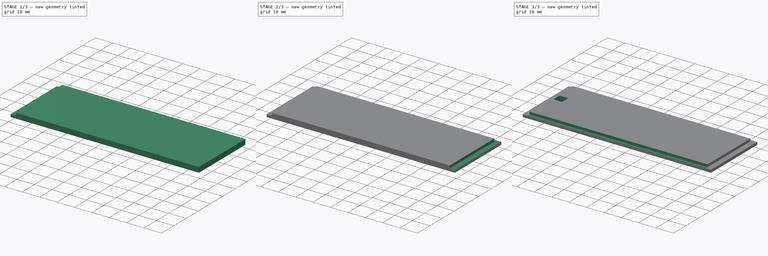
[diagram: build sequence overview — one tinted view per stage of 3, left to right]
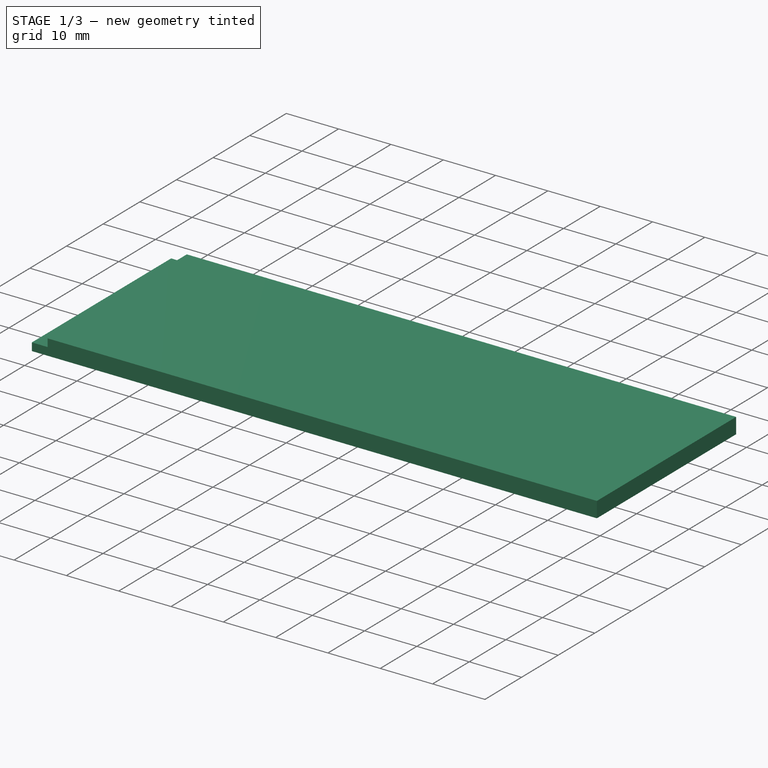
[diagram: stage 1 of 3 — iso view after this stage's code; geometry added in this stage tinted green]
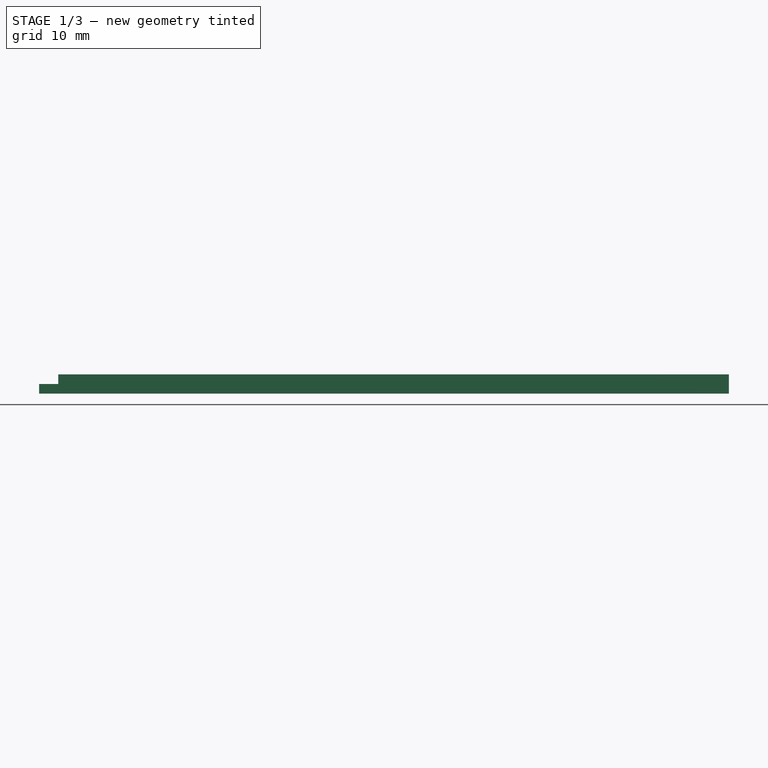
[diagram: stage 1 of 3 — front view after this stage's code; geometry added in this stage tinted green]
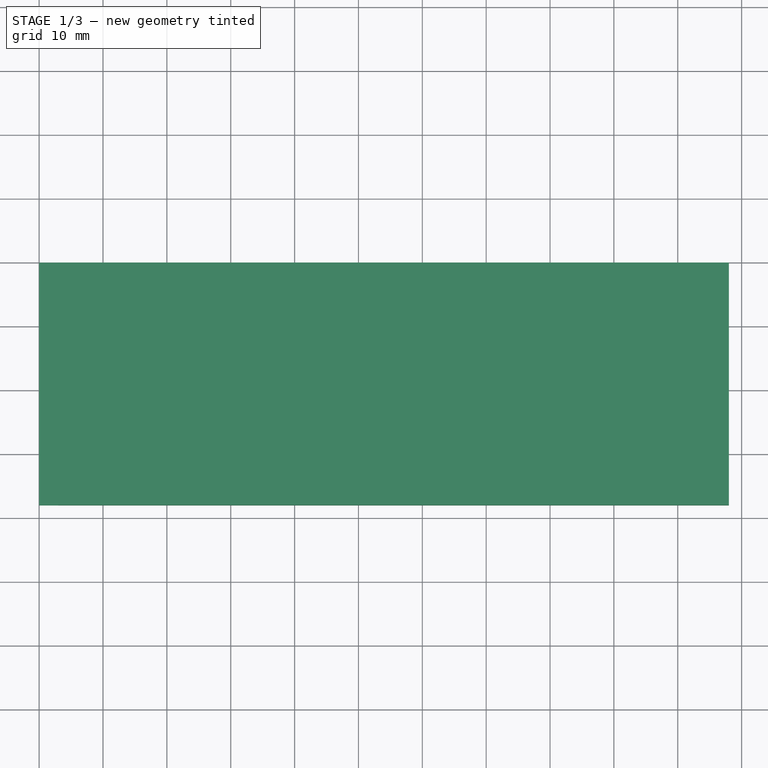
[diagram: stage 1 of 3 — top view after this stage's code; geometry added in this stage tinted green]
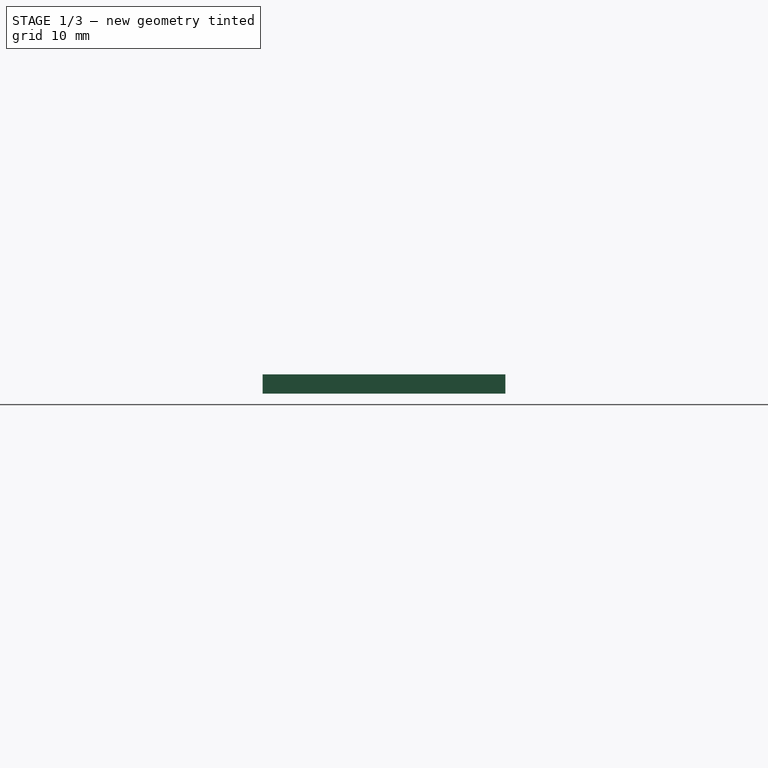
[diagram: stage 1 of 3 — right view after this stage's code; geometry added in this stage tinted green]
FCSTD DOCUMENT  (FreeCAD 0.21R33771 (Git))
Label: P113_case_back
License: All rights reserved
LicenseURL: http://en.wikipedia.org/wiki/All_rights_reserved
objects: Sketcher::SketchObject×7, PartDesign::Pocket×5, PartDesign::Pad×1, PartDesign::Body×1
note: 20 computed .brp shape members not serialized (recipe doc carries the construction recipe); baked Part::Feature solids carry a one-line shape summary decoded from their .brp

FEATURE [Sketcher::SketchObject] Sketch
  FullyConstrained = true
  MapMode = 5
  Support = -> [XY_Plane]
  sketch-geometry (4):
    g0: LineSegment StartX=0 StartY=0 StartZ=0 EndX=108 EndY=0 EndZ=0
    g1: LineSegment StartX=108 StartY=0 StartZ=0 EndX=108 EndY=-38 EndZ=0
    g2: LineSegment StartX=108 StartY=-38 StartZ=0 EndX=0 EndY=-38 EndZ=0
    g3: LineSegment StartX=0 StartY=-38 StartZ=0 EndX=0 EndY=0 EndZ=0
  constraints (11):
    c: Coincident(g0,g1)
    c: Coincident(g1,g2)
    c: Coincident(g2,g3)
    c: Coincident(g3,g0)
    c: Horizontal(g0)
    c: Horizontal(g2)
    c: Vertical(g1)
    c: Vertical(g3)
    c: Distance(g0) = 108
    c: Distance(g3) = 38
    c: Coincident(g0,g-1)
FEATURE [PartDesign::Pad] Pad
  Direction = (0,0,1)
  Length = 3
  Length2 = 10
  Profile = -> Sketch
  ReferenceAxis = -> Sketch [N_Axis]
  Type = 0
FEATURE [Sketcher::SketchObject] Sketch001
  FullyConstrained = true
  MapMode = 5
  Placement = pos=(0,0,3) rot=(0,0,1;0rad)
  Support = -> [Pad]
FEATURE [Sketcher::SketchObject] Sketch002
  FullyConstrained = true
  MapMode = 5
  Placement = pos=(0,0,3) rot=(0,0,1;0rad)
  Support = -> [Pad]
  sketch-geometry (4):
    g0: LineSegment StartX=0 StartY=0 StartZ=0 EndX=3 EndY=0 EndZ=0
    g1: LineSegment StartX=3 StartY=0 StartZ=0 EndX=3 EndY=-38 EndZ=0
    g2: LineSegment StartX=3 StartY=-38 StartZ=0 EndX=0 EndY=-38 EndZ=0
    g3: LineSegment StartX=0 StartY=-38 StartZ=0 EndX=0 EndY=0 EndZ=0
  constraints (11):
    c: Coincident(g0,g1)
    c: Coincident(g1,g2)
    c: Coincident(g2,g3)
    c: Coincident(g3,g0)
    c: Horizontal(g0)
    c: Horizontal(g2)
    c: Vertical(g1)
    c: Vertical(g3)
    c: Coincident(g0,g-1)
    c: Distance(g1) = 38
    c: Distance(g0) = 3
FEATURE [PartDesign::Pocket] Pocket
  BaseFeature = -> Pad
  Direction = (0,0,-1)
  Length = 1.5
  Length2 = 5
  Profile = -> Sketch002
  ReferenceAxis = -> Sketch002 [N_Axis]
  Type = 0
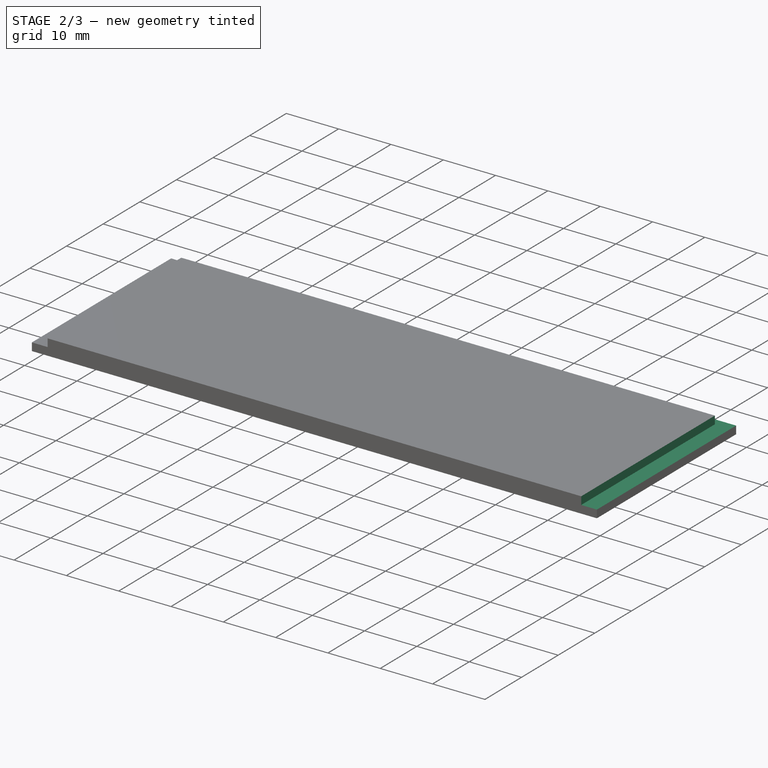
[diagram: stage 2 of 3 — iso view after this stage's code; geometry added in this stage tinted green]
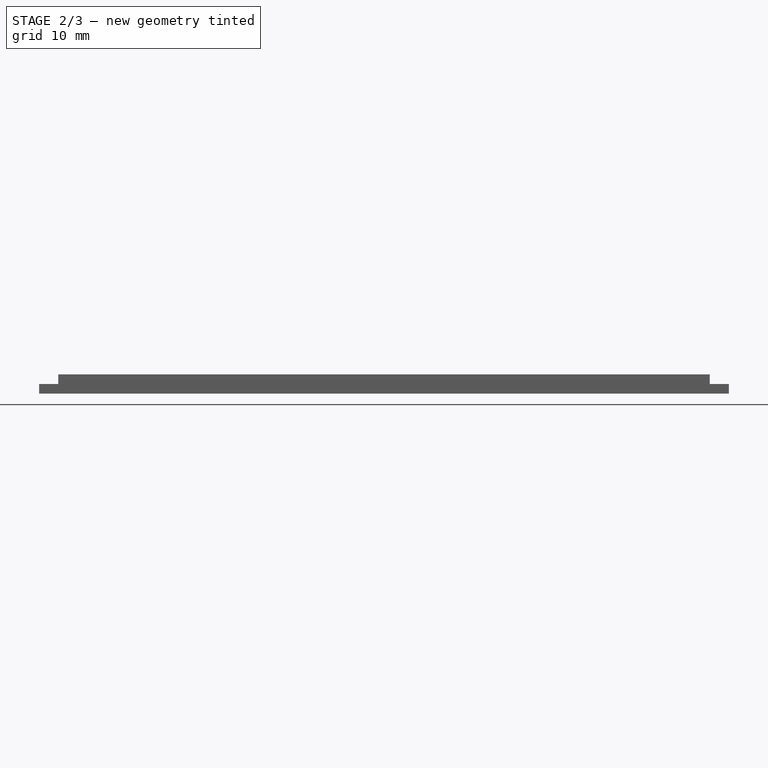
[diagram: stage 2 of 3 — front view after this stage's code; geometry added in this stage tinted green]
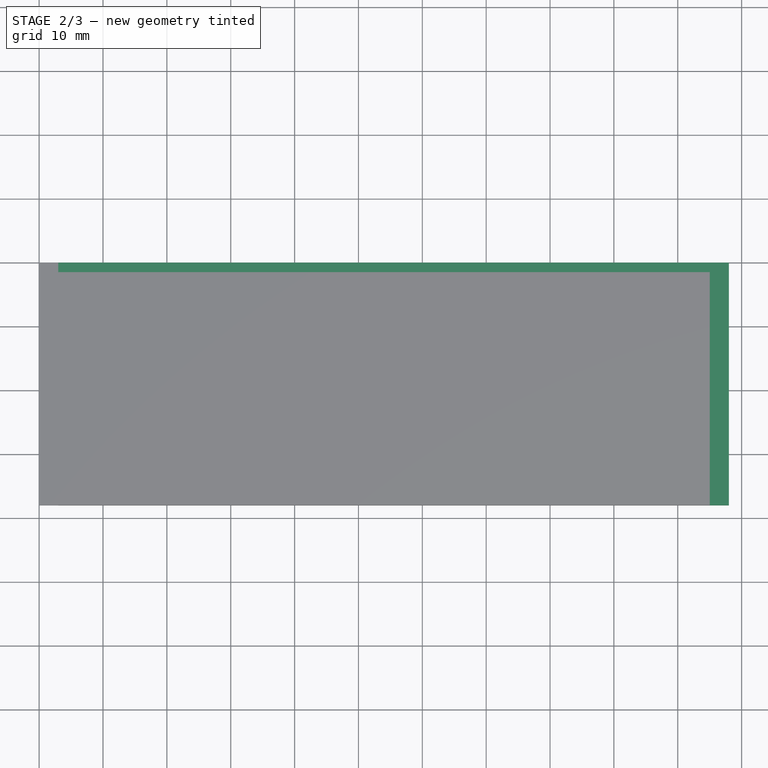
[diagram: stage 2 of 3 — top view after this stage's code; geometry added in this stage tinted green]
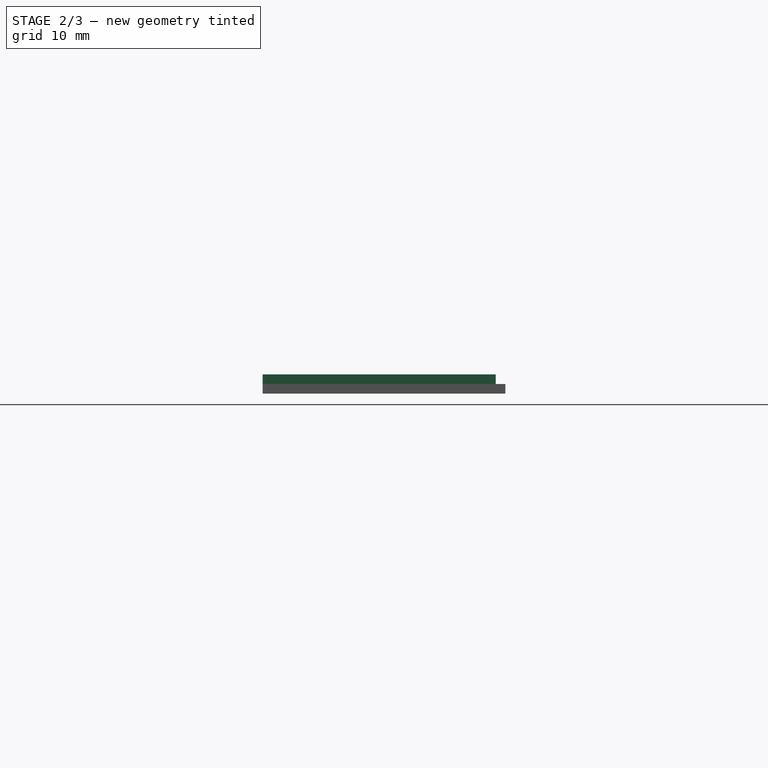
[diagram: stage 2 of 3 — right view after this stage's code; geometry added in this stage tinted green]
FEATURE [Sketcher::SketchObject] Sketch003
  FullyConstrained = true
  MapMode = 5
  Placement = pos=(0,0,3) rot=(0,0,1;0rad)
  Support = -> [Pocket]
  sketch-geometry (5):
    g0: GeomPoint X=108 Y=0 Z=0
    g1: LineSegment StartX=108 StartY=0 StartZ=0 EndX=105 EndY=0 EndZ=0
    g2: LineSegment StartX=105 StartY=0 StartZ=0 EndX=105 EndY=-38 EndZ=0
    g3: LineSegment StartX=105 StartY=-38 StartZ=0 EndX=108 EndY=-38 EndZ=0
    g4: LineSegment StartX=108 StartY=-38 StartZ=0 EndX=108 EndY=0 EndZ=0
  constraints (13):
    c: DistanceY(g0) = 0
    c: DistanceX(g0) = 108
    c: Coincident(g1,g2)
    c: Coincident(g2,g3)
    c: Coincident(g3,g4)
    c: Coincident(g4,g1)
    c: Horizontal(g1)
    c: Horizontal(g3)
    c: Vertical(g2)
    c: Vertical(g4)
    c: Coincident(g1,g0)
    c: Distance(g2) = 38
    c: Distance(g1) = 3
FEATURE [PartDesign::Pocket] Pocket001
  BaseFeature = -> Pocket
  Direction = (0,0,-1)
  Length = 1.5
  Length2 = 5
  Profile = -> Sketch003
  ReferenceAxis = -> Sketch003 [N_Axis]
  Type = 0
FEATURE [Sketcher::SketchObject] Sketch004
  FullyConstrained = true
  MapMode = 5
  Placement = pos=(0,0,3) rot=(0,0,1;0rad)
  Support = -> [Pocket001]
  sketch-geometry (5):
    g0: GeomPoint X=3 Y=0 Z=0
    g1: LineSegment StartX=3 StartY=0 StartZ=0 EndX=105 EndY=0 EndZ=0
    g2: LineSegment StartX=105 StartY=0 StartZ=0 EndX=105 EndY=-1.5 EndZ=0
    g3: LineSegment StartX=105 StartY=-1.5 StartZ=0 EndX=3 EndY=-1.5 EndZ=0
    g4: LineSegment StartX=3 StartY=-1.5 StartZ=0 EndX=3 EndY=0 EndZ=0
  constraints (13):
    c: DistanceY(g0) = 0
    c: DistanceX(g0) = 3
    c: Coincident(g1,g2)
    c: Coincident(g2,g3)
    c: Coincident(g3,g4)
    c: Coincident(g4,g1)
    c: Horizontal(g1)
    c: Horizontal(g3)
    c: Vertical(g2)
    c: Vertical(g4)
    c: Coincident(g1,g0)
    c: Distance(g2) = 1.5
    c: Distance(g3) = 102
FEATURE [PartDesign::Pocket] Pocket002
  BaseFeature = -> Pocket001
  Direction = (0,0,-1)
  Length = 1.5
  Length2 = 5
  Profile = -> Sketch004
  ReferenceAxis = -> Sketch004 [N_Axis]
  Type = 0
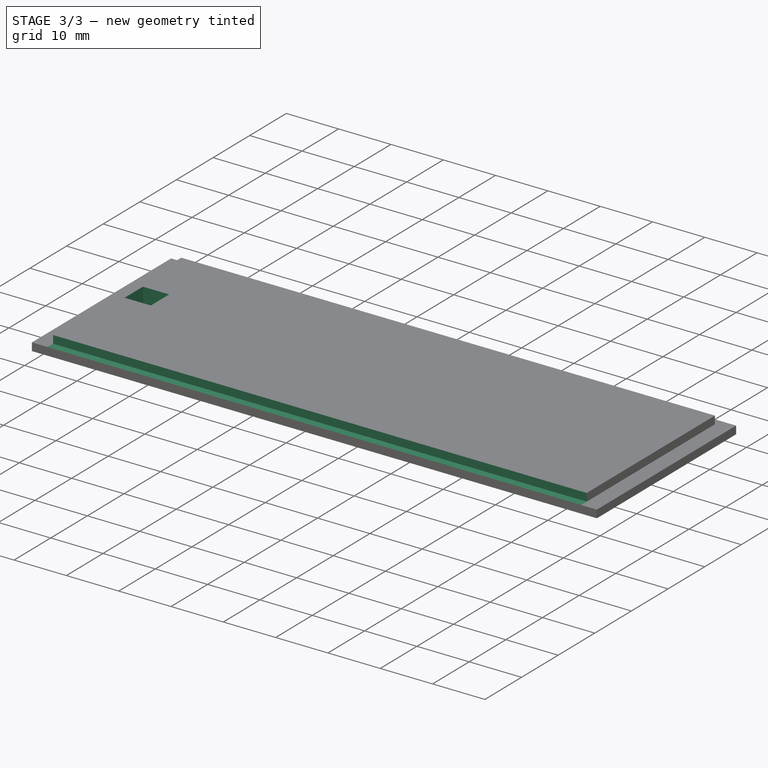
[diagram: stage 3 of 3 — iso view after this stage's code; geometry added in this stage tinted green]
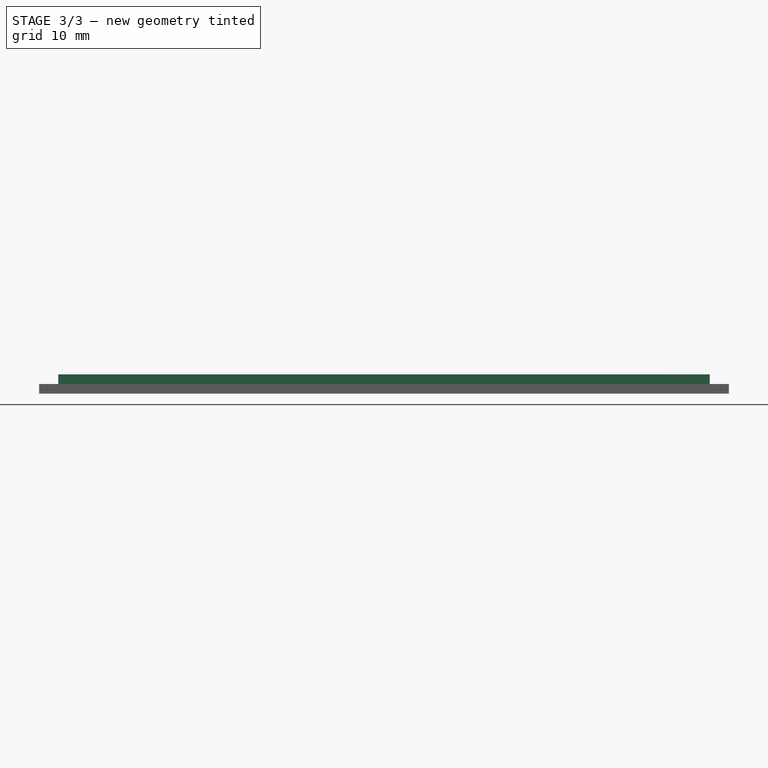
[diagram: stage 3 of 3 — front view after this stage's code; geometry added in this stage tinted green]
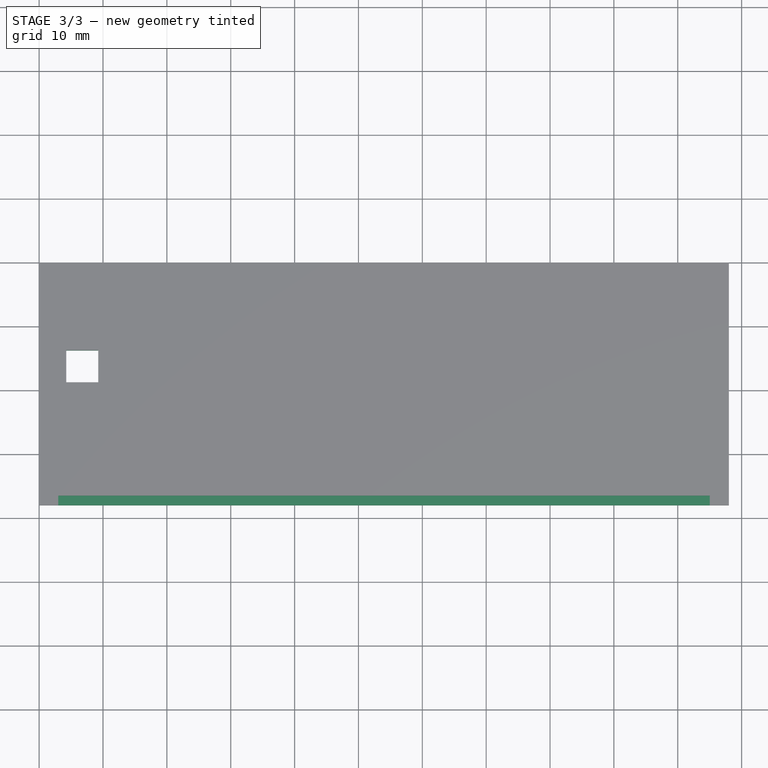
[diagram: stage 3 of 3 — top view after this stage's code; geometry added in this stage tinted green]
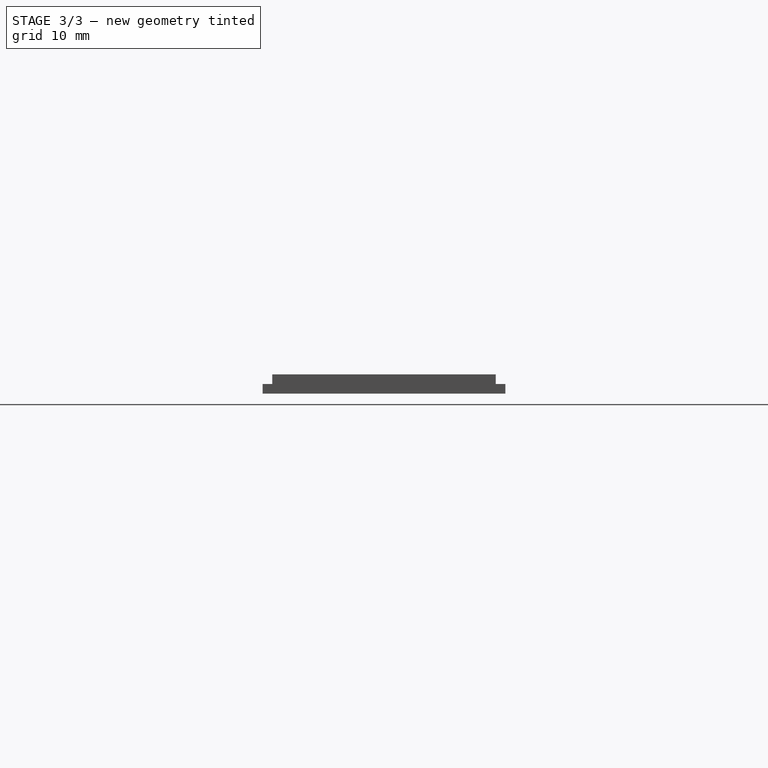
[diagram: stage 3 of 3 — right view after this stage's code; geometry added in this stage tinted green]
FEATURE [Sketcher::SketchObject] Sketch005
  FullyConstrained = true
  MapMode = 5
  Placement = pos=(0,0,3) rot=(0,0,1;0rad)
  Support = -> [Pocket002]
  sketch-geometry (5):
    g0: GeomPoint X=3 Y=-36.5 Z=0
    g1: LineSegment StartX=3 StartY=-36.5 StartZ=0 EndX=105 EndY=-36.5 EndZ=0
    g2: LineSegment StartX=105 StartY=-36.5 StartZ=0 EndX=105 EndY=-38 EndZ=0
    g3: LineSegment StartX=105 StartY=-38 StartZ=0 EndX=3 EndY=-38 EndZ=0
    g4: LineSegment StartX=3 StartY=-38 StartZ=0 EndX=3 EndY=-36.5 EndZ=0
  constraints (13):
    c: DistanceX(g0) = 3
    c: DistanceY(g0) = -36.5
    c: Coincident(g1,g2)
    c: Coincident(g2,g3)
    c: Coincident(g3,g4)
    c: Coincident(g4,g1)
    c: Horizontal(g1)
    c: Horizontal(g3)
    c: Vertical(g2)
    c: Vertical(g4)
    c: Coincident(g1,g0)
    c: Distance(g2) = 1.5
    c: Distance(g1) = 102
FEATURE [PartDesign::Pocket] Pocket003
  BaseFeature = -> Pocket002
  Direction = (0,0,-1)
  Length = 1.5
  Length2 = 5
  Profile = -> Sketch005
  ReferenceAxis = -> Sketch005 [N_Axis]
  Type = 0
FEATURE [Sketcher::SketchObject] Sketch006
  FullyConstrained = true
  MapMode = 5
  Placement = pos=(0,0,3) rot=(0,0,1;0rad)
  Support = -> [Pocket003]
  sketch-geometry (5):
    g0: GeomPoint X=4.25 Y=-13.75 Z=0
    g1: LineSegment StartX=4.25 StartY=-13.75 StartZ=0 EndX=9.25 EndY=-13.75 EndZ=0
    g2: LineSegment StartX=9.25 StartY=-13.75 StartZ=0 EndX=9.25 EndY=-18.75 EndZ=0
    g3: LineSegment StartX=9.25 StartY=-18.75 StartZ=0 EndX=4.25 EndY=-18.75 EndZ=0
    g4: LineSegment StartX=4.25 StartY=-18.75 StartZ=0 EndX=4.25 EndY=-13.75 EndZ=0
  constraints (13):
    c: DistanceX(g0) = 4.25
    c: DistanceY(g0) = -13.75
    c: Coincident(g1,g2)
    c: Coincident(g2,g3)
    c: Coincident(g3,g4)
    c: Coincident(g4,g1)
    c: Horizontal(g1)
    c: Horizontal(g3)
    c: Vertical(g2)
    c: Vertical(g4)
    c: Coincident(g1,g0)
    c: Distance(g2) = 5
    c: Distance(g3) = 5
FEATURE [PartDesign::Pocket] Pocket004
  BaseFeature = -> Pocket003
  Direction = (0,0,-1)
  Length = 3
  Length2 = 5
  Profile = -> Sketch006
  ReferenceAxis = -> Sketch006 [N_Axis]
  Type = 0
FEATURE [PartDesign::Body] Body  label="Lichaam"
  Group = -> [Sketch,Pad,Sketch001,Sketch002,Pocket,Sketch003,Pocket001,Sketch004,Pocket002,Sketch005,Pocket003,Sketch006,Pocket004]
  Origin = -> Origin
  Tip = -> Pocket004
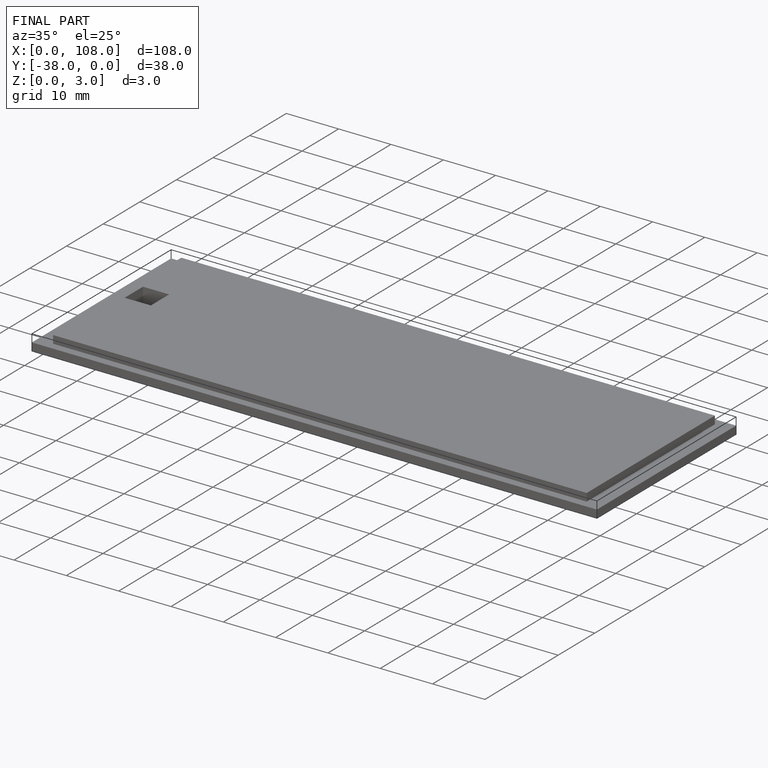
[diagram: finished part — iso view with bounding-box wireframe]
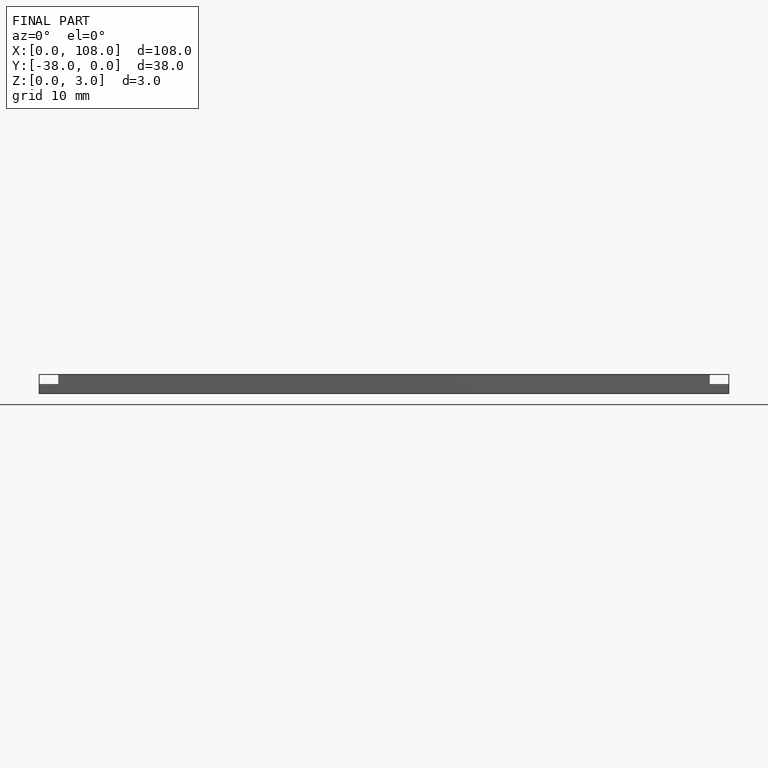
[diagram: finished part — front view with bounding-box wireframe]
